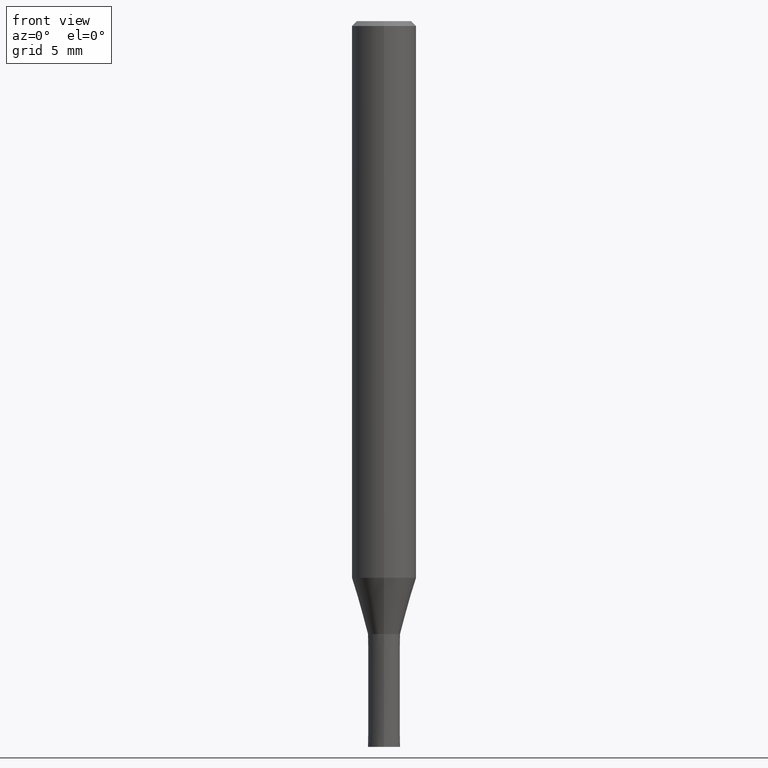
[diagram: clean part render]
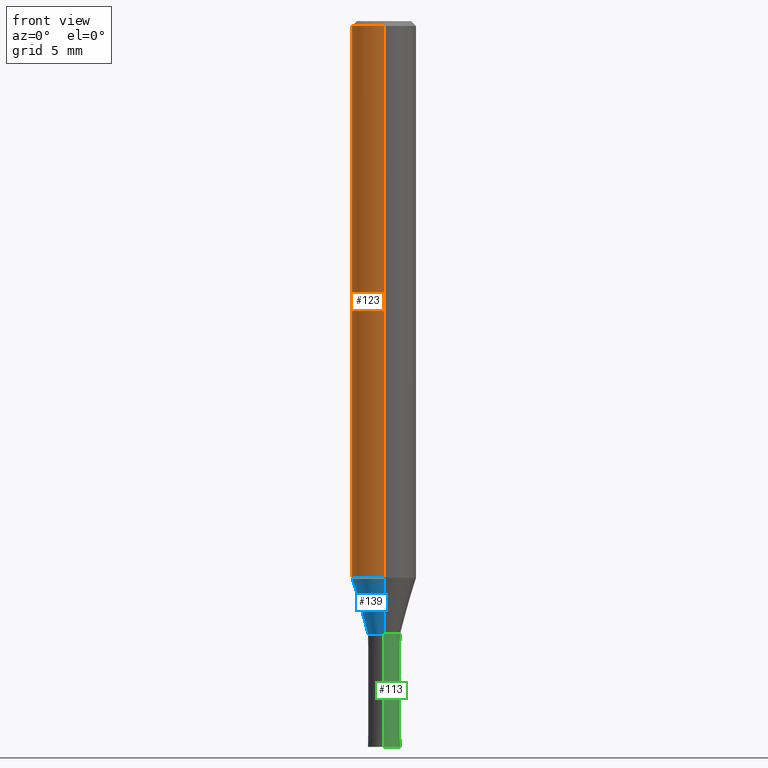
[diagram: same view with three faces highlighted in distinct colors, each labeled with its STEP entity id]
A machine part, front view with three faces highlighted in distinct colors.
Their STEP definitions:

[orange] entity #123 — the highlighted cylindrical surface (edge-blend (fillet) strip) has radius 2 mm, axis along (-0, -0, 1).
#109=VERTEX_POINT('',#280);
#119=EDGE_CURVE('',#109,#181,#292,.T.);
#123=ADVANCED_FACE('',(#296),#297,.T.);
#133=VERTEX_POINT('',#309);
#151=EDGE_CURVE('',#181,#171,#331,.T.);
#171=VERTEX_POINT('',#356);
#181=VERTEX_POINT('',#367);
#203=EDGE_CURVE('',#171,#133,#390,.T.);
#205=EDGE_CURVE('',#109,#133,#392,.T.);
#280=CARTESIAN_POINT('',(2.44921270764475E-016,-2.0,-34.513));
#292=LINE('',#479,#480);
#296=FACE_OUTER_BOUND('',#484,.T.);
#297=CYLINDRICAL_SURFACE('',#485,2.0);
#309=CARTESIAN_POINT('',(0.0,2.0,-34.513));
#331=CIRCLE('',#526,2.0);
#356=CARTESIAN_POINT('',(0.0,2.0,-0.299999999999997));
#367=CARTESIAN_POINT('',(2.44921270764475E-016,-2.0,-0.299999999999997));
#390=LINE('',#600,#601);
#392=CIRCLE('',#604,2.0);
#479=CARTESIAN_POINT('',(2.44921270764475E-016,-2.0,-17.4065));
#480=VECTOR('',#702,1.0);
#484=EDGE_LOOP('',(#704,#705,#706,#707));
#485=AXIS2_PLACEMENT_3D('',#708,#709,#710);
#526=AXIS2_PLACEMENT_3D('',#764,#765,#766);
#600=CARTESIAN_POINT('',(-2.44921270764475E-016,2.0,-17.4065));
#601=VECTOR('',#831,1.0);
#604=AXIS2_PLACEMENT_3D('',#832,#833,#834);
#702=DIRECTION('',(-0.0,-0.0,1.0));
#704=ORIENTED_EDGE('',*,*,#203,.T.);
#705=ORIENTED_EDGE('',*,*,#205,.F.);
#706=ORIENTED_EDGE('',*,*,#119,.T.);
#707=ORIENTED_EDGE('',*,*,#151,.T.);
#708=CARTESIAN_POINT('',(0.0,0.0,-17.4065));
#709=DIRECTION('',(-0.0,-0.0,1.0));
#710=DIRECTION('',(0.0,1.0,0.0));
#764=CARTESIAN_POINT('',(0.0,0.0,-0.299999999999997));
#765=DIRECTION('',(0.0,0.0,-1.0));
#766=DIRECTION('',(0.0,1.0,0.0));
#831=DIRECTION('',(0.0,0.0,-1.0));
#832=CARTESIAN_POINT('',(0.0,0.0,-34.513));
#833=DIRECTION('',(0.0,0.0,-1.0));
#834=DIRECTION('',(0.0,1.0,0.0));

[blue] entity #139 — the highlighted conical surface has half-angle 16.002 deg.
#129=EDGE_CURVE('',#185,#157,#305,.T.);
#139=ADVANCED_FACE('',(#316),#317,.T.);
#141=VERTEX_POINT('',#319);
#157=VERTEX_POINT('',#337);
#185=VERTEX_POINT('',#371);
#189=EDGE_CURVE('',#211,#157,#375,.T.);
#211=VERTEX_POINT('',#399);
#245=EDGE_CURVE('',#141,#211,#437,.T.);
#251=EDGE_CURVE('',#185,#141,#443,.T.);
#305=CIRCLE('',#495,0.99995);
#316=FACE_OUTER_BOUND('',#508,.T.);
#317=CONICAL_SURFACE('',#509,1.49995,0.279284171542493);
#319=CARTESIAN_POINT('',(2.44915147732706E-016,-1.99995,-34.513));
#337=CARTESIAN_POINT('',(0.0,0.99995,-38.0));
#371=CARTESIAN_POINT('',(1.22454512350469E-016,-0.99995,-38.0));
#375=LINE('',#578,#579);
#399=CARTESIAN_POINT('',(0.0,1.99995,-34.513));
#437=CIRCLE('',#662,1.99995);
#443=LINE('',#669,#670);
#495=AXIS2_PLACEMENT_3D('',#722,#723,#724);
#508=EDGE_LOOP('',(#740,#741,#742,#743));
#509=AXIS2_PLACEMENT_3D('',#744,#745,#746);
#578=CARTESIAN_POINT('',(-1.83684830041587E-016,1.49995,-36.2565));
#579=VECTOR('',#812,1.0);
#662=AXIS2_PLACEMENT_3D('',#885,#886,#887);
#669=CARTESIAN_POINT('',(1.83684830041587E-016,-1.49995,-36.2565));
#670=VECTOR('',#888,1.0);
#722=CARTESIAN_POINT('',(0.0,0.0,-38.0));
#723=DIRECTION('',(0.0,0.0,-1.0));
#724=DIRECTION('',(0.0,1.0,0.0));
#740=ORIENTED_EDGE('',*,*,#189,.T.);
#741=ORIENTED_EDGE('',*,*,#129,.F.);
#742=ORIENTED_EDGE('',*,*,#251,.T.);
#743=ORIENTED_EDGE('',*,*,#245,.T.);
#744=CARTESIAN_POINT('',(0.0,0.0,-36.2565));
#745=DIRECTION('',(-0.0,-0.0,1.0));
#746=DIRECTION('',(0.0,1.0,0.0));
#812=DIRECTION('',(3.37584327551579E-017,-0.275667626987132,-0.961253015304131));
#885=CARTESIAN_POINT('',(0.0,0.0,-34.513));
#886=DIRECTION('',(0.0,0.0,-1.0));
#887=DIRECTION('',(0.0,1.0,0.0));
#888=DIRECTION('',(3.37584327551579E-017,-0.275667626987132,0.961253015304131));

[green] entity #113 — the highlighted conical surface has half-angle 0.001 deg.
#113=ADVANCED_FACE('',(#284),#285,.T.);
#121=VERTEX_POINT('',#294);
#175=VERTEX_POINT('',#360);
#193=EDGE_CURVE('',#175,#121,#379,.T.);
#195=EDGE_CURVE('',#175,#255,#381,.T.);
#215=EDGE_CURVE('',#247,#255,#403,.T.);
#217=EDGE_CURVE('',#121,#247,#405,.T.);
#247=VERTEX_POINT('',#439);
#255=VERTEX_POINT('',#448);
#284=FACE_OUTER_BOUND('',#470,.T.);
#285=CONICAL_SURFACE('',#471,0.99995,1.42857142847409E-005);
#294=CARTESIAN_POINT('',(0.0,1.0,-45.0));
#360=CARTESIAN_POINT('',(0.0,0.9999,-38.0));
#379=LINE('',#584,#585);
#381=CIRCLE('',#588,0.9999);
#403=LINE('',#619,#620);
#405=CIRCLE('',#623,1.0);
#439=CARTESIAN_POINT('',(1.22460635382238E-016,-1.0,-45.0));
#448=CARTESIAN_POINT('',(1.224483893187E-016,-0.9999,-38.0));
#470=EDGE_LOOP('',(#687,#688,#689,#690));
#471=AXIS2_PLACEMENT_3D('',#691,#692,#693);
#584=CARTESIAN_POINT('',(-1.22454512350469E-016,0.99995,-41.5));
#585=VECTOR('',#813,1.0);
#588=AXIS2_PLACEMENT_3D('',#814,#815,#816);
#619=CARTESIAN_POINT('',(1.22454512350469E-016,-0.99995,-41.5));
#620=VECTOR('',#847,1.0);
#623=AXIS2_PLACEMENT_3D('',#848,#849,#850);
#687=ORIENTED_EDGE('',*,*,#193,.F.);
#688=ORIENTED_EDGE('',*,*,#195,.T.);
#689=ORIENTED_EDGE('',*,*,#215,.F.);
#690=ORIENTED_EDGE('',*,*,#217,.F.);
#691=CARTESIAN_POINT('',(0.0,0.0,-41.5));
#692=DIRECTION('',(0.0,-0.0,-1.0));
#693=DIRECTION('',(0.0,1.0,0.0));
#813=DIRECTION('',(-1.74943764813898E-021,1.4285714284255E-005,-0.999999999897959));
#814=CARTESIAN_POINT('',(0.0,0.0,-38.0));
#815=DIRECTION('',(0.0,0.0,-1.0));
#816=DIRECTION('',(0.0,1.0,0.0));
#847=DIRECTION('',(-1.74943764813897E-021,1.4285714284255E-005,0.999999999897959));
#848=CARTESIAN_POINT('',(0.0,0.0,-45.0));
#849=DIRECTION('',(0.0,0.0,-1.0));
#850=DIRECTION('',(0.0,1.0,0.0));